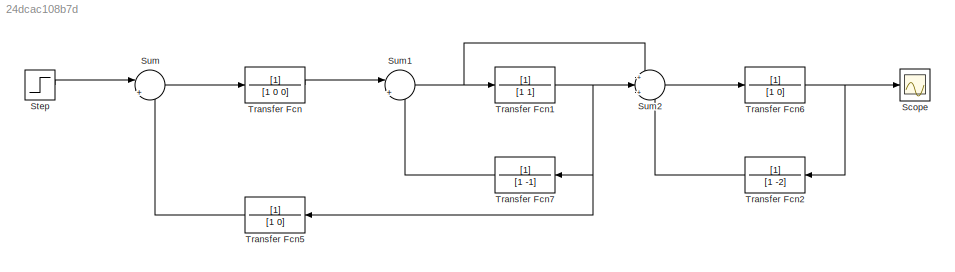
MODEL slx_24dcac108b7d
KIND model
CONFIG AbsTol = auto
CONFIG EnableMultiTasking = off
CONFIG FixedStep = auto
CONFIG MaxStep = auto
CONFIG MinStep = auto
CONFIG RelTol = 1e-3
CONFIG SampleTimeConstraint = Unconstrained
CONFIG SolverName = VariableStepAuto
CONFIG StartTime = 0.0
CONFIG StopTime = 30
BLOCK [Scope] Scope
  Floating = off
  NumInputPorts = 1
  ScopeSpecificationString = Simulink.scopes.TimeScopeBlockCfg('CurrentConfiguration', extmgr.ConfigurationSet(extmgr.Configuration('Core','General UI',true),extmgr.Configuration('Core','Source UI',true),extmgr.Configuration('Sources','WiredSimulink',true),extmgr.Configuration('Visuals','Time Domain',true,'SerializedDisplays',{struct('MinYLimReal','-18016774311845.4375','MaxYLimReal','2001863812427.94824','YLabelReal','','Min...<+1484ch>
BLOCK [Step] Step
  SampleTime = 0
BLOCK [Sum] Sum
  Inputs = ||+|-
BLOCK [Sum] Sum1
  Inputs = ||+|-
BLOCK [Sum] Sum2
  Inputs = +|+|-
BLOCK [TransferFcn] Transfer Fcn
  Denominator = [1 0 0]
BLOCK [TransferFcn] Transfer Fcn1
  Denominator = [1 1]
BLOCK [TransferFcn] Transfer Fcn2
  Denominator = [1 -2]
  NameLocation = top
BLOCK [TransferFcn] Transfer Fcn5
  Denominator = [1 0]
  NameLocation = top
BLOCK [TransferFcn] Transfer Fcn6
  Denominator = [1 0]
BLOCK [TransferFcn] Transfer Fcn7
  Denominator = [1 -1]
  NameLocation = top
LINE Step:1 -> Sum:1
NET Sum1:1 -> Sum2:1, Transfer Fcn1:1
LINE Sum2:1 -> Transfer Fcn6:1
LINE Sum:1 -> Transfer Fcn:1
NET Transfer Fcn1:1 -> Sum2:2, Transfer Fcn5:1, Transfer Fcn7:1
LINE Transfer Fcn2:1 -> Sum2:3
LINE Transfer Fcn5:1 -> Sum:2
NET Transfer Fcn6:1 -> Scope:1, Transfer Fcn2:1
LINE Transfer Fcn7:1 -> Sum1:2
LINE Transfer Fcn:1 -> Sum1:1
note: NET lines group one-source signal fan-out (src -> all destinations, sorted); 1:1 wires keep LINE
